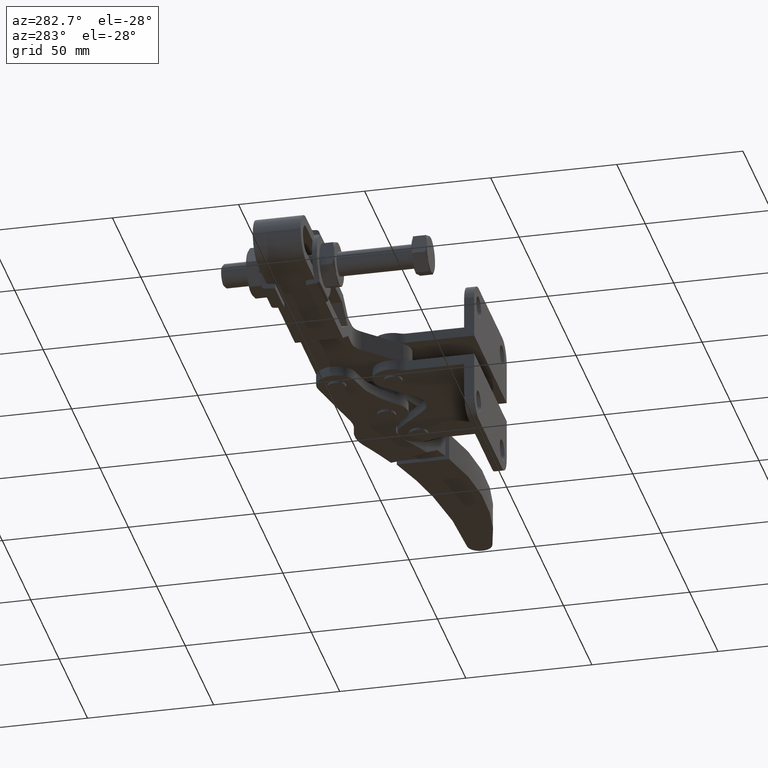
[diagram: clean part render]
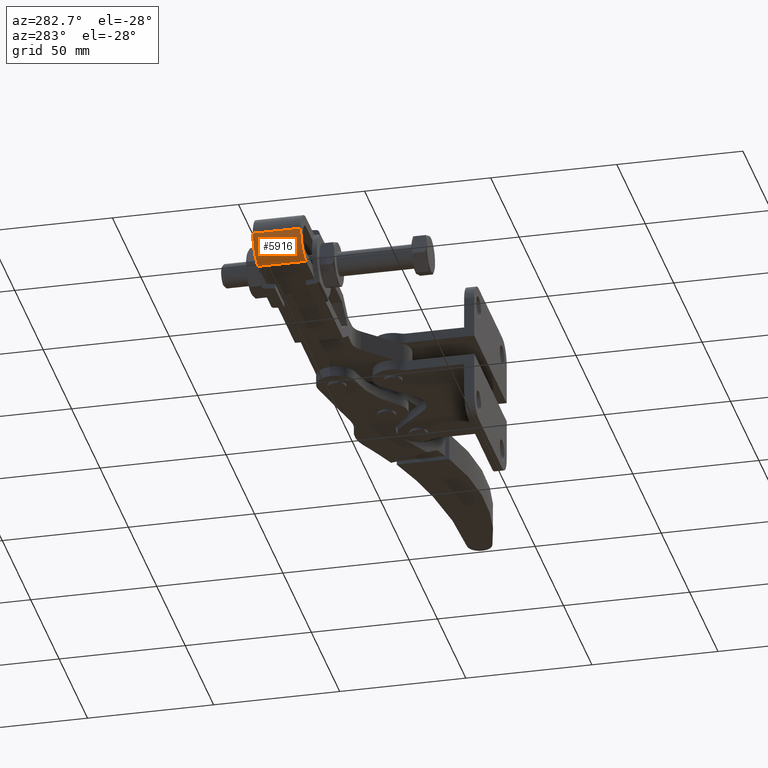
[diagram: same view with one face highlighted and labeled with its STEP entity id]
A machine part, auxiliary view. The second image highlights one B-rep face of the part: STEP entity #5916.
In plain terms, the highlighted cylindrical surface (edge-blend (fillet) strip) has radius 9.5 mm, axis along (0, 1, 0).
Its self-contained STEP definition (entity closure, byte-faithful):
#99 = VERTEX_POINT ( 'NONE', #7195 ) ;
#171 = EDGE_CURVE ( 'NONE', #99, #1353, #10861, .T. ) ;
#237 = DIRECTION ( 'NONE',  ( -0.9999999999979536400, 2.023005871373689900E-006, -3.789001276475671900E-014 ) ) ;
#610 = CARTESIAN_POINT ( 'NONE',  ( -165.3999397141879800, 63.40023163411171900, -4.000000000006608000 ) ) ;
#663 = CARTESIAN_POINT ( 'NONE',  ( -155.8999397142074500, 63.40021241555594900, -4.000000000006247400 ) ) ;
#1353 = VERTEX_POINT ( 'NONE', #3407 ) ;
#1518 = DIRECTION ( 'NONE',  ( 0.9999999999979536400, -2.023005871008485300E-006, 3.789001276475671900E-014 ) ) ;
#1909 = DIRECTION ( 'NONE',  ( 2.023005871480253900E-006, 0.9999999999979537500, 2.496099046475832700E-017 ) ) ;
#1980 = CIRCLE ( 'NONE', #6496, 9.499999999999964500 ) ;
#2125 = EDGE_CURVE ( 'NONE', #1353, #3539, #10630, .T. ) ;
#2308 = VERTEX_POINT ( 'NONE', #610 ) ;
#2868 = EDGE_LOOP ( 'NONE', ( #6447, #8439, #10760, #6263 ) ) ;
#3407 = CARTESIAN_POINT ( 'NONE',  ( -155.8999781513186600, 44.40021241559470900, -13.50000000000619900 ) ) ;
#3539 = VERTEX_POINT ( 'NONE', #5739 ) ;
#3544 = AXIS2_PLACEMENT_3D ( 'NONE', #7021, #1909, #237 ) ;
#3949 = DIRECTION ( 'NONE',  ( 0.9999999999979536400, -2.023005871008485300E-006, 3.789001276475671900E-014 ) ) ;
#4486 = DIRECTION ( 'NONE',  ( 2.023005871480253500E-006, 0.9999999999979536400, 2.496099046475832400E-017 ) ) ;
#4786 = DIRECTION ( 'NONE',  ( 2.023005871480253500E-006, 0.9999999999979536400, 2.496099046475832400E-017 ) ) ;
#5024 = FACE_OUTER_BOUND ( 'NONE', #2868, .T. ) ;
#5739 = CARTESIAN_POINT ( 'NONE',  ( -155.8999397142071100, 63.40021241555594900, -13.50000000000619900 ) ) ;
#5916 = ADVANCED_FACE ( 'NONE', ( #5024 ), #6747, .T. ) ;
#6263 = ORIENTED_EDGE ( 'NONE', *, *, #2125, .F. ) ;
#6447 = ORIENTED_EDGE ( 'NONE', *, *, #171, .F. ) ;
#6488 = CARTESIAN_POINT ( 'NONE',  ( -165.4000151723069800, 26.10023163418805600, -4.000000000006608900 ) ) ;
#6496 = AXIS2_PLACEMENT_3D ( 'NONE', #663, #6618, #1518 ) ;
#6618 = DIRECTION ( 'NONE',  ( -2.023005871480253900E-006, -0.9999999999979537500, -2.496099046475832700E-017 ) ) ;
#6747 = CYLINDRICAL_SURFACE ( 'NONE', #3544, 9.499999999999964500 ) ;
#7021 = CARTESIAN_POINT ( 'NONE',  ( -155.9000151723264500, 26.10021241563227800, -4.000000000006248300 ) ) ;
#7195 = CARTESIAN_POINT ( 'NONE',  ( -165.3999781512995400, 44.40023163415047900, -4.000000000006608000 ) ) ;
#7814 = VECTOR ( 'NONE', #4786, 1000.000000000000100 ) ;
#8391 = VECTOR ( 'NONE', #4486, 1000.000000000000100 ) ;
#8439 = ORIENTED_EDGE ( 'NONE', *, *, #10169, .T. ) ;
#8949 = AXIS2_PLACEMENT_3D ( 'NONE', #9008, #9877, #3949 ) ;
#9008 = CARTESIAN_POINT ( 'NONE',  ( -155.8999781513190300, 44.40021241559470900, -4.000000000006247400 ) ) ;
#9743 = EDGE_CURVE ( 'NONE', #2308, #3539, #1980, .T. ) ;
#9877 = DIRECTION ( 'NONE',  ( -2.023005870746017800E-006, -0.9999999999979537500, -2.496099046473048300E-017 ) ) ;
#10039 = LINE ( 'NONE', #6488, #7814 ) ;
#10169 = EDGE_CURVE ( 'NONE', #99, #2308, #10039, .T. ) ;
#10421 = CARTESIAN_POINT ( 'NONE',  ( -155.9000151723261100, 26.10021241563227800, -13.50000000000620100 ) ) ;
#10630 = LINE ( 'NONE', #10421, #8391 ) ;
#10760 = ORIENTED_EDGE ( 'NONE', *, *, #9743, .T. ) ;
#10861 = CIRCLE ( 'NONE', #8949, 9.499999999999964500 ) ;